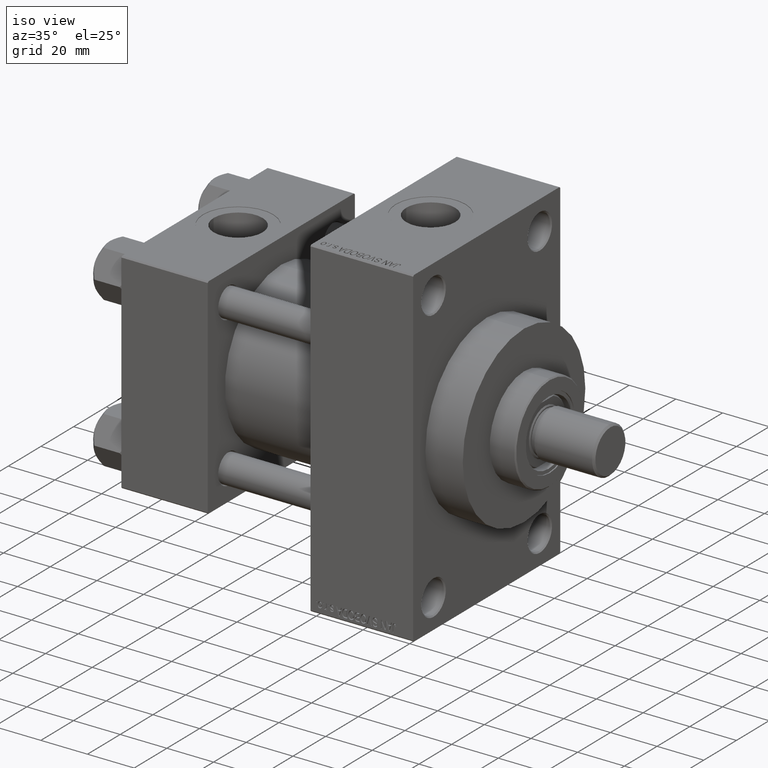
[diagram: clean part render]
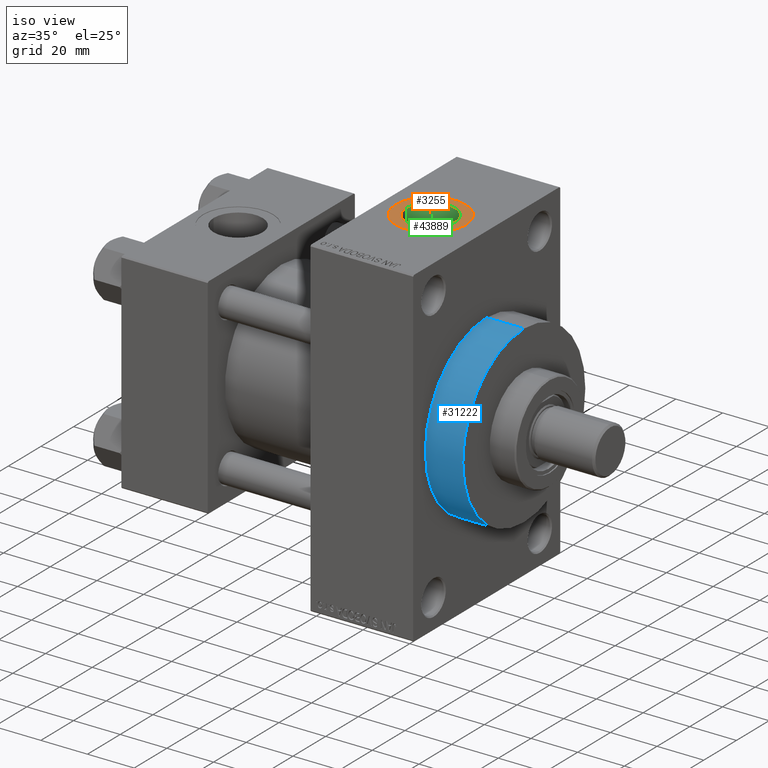
[diagram: same view with three faces highlighted in distinct colors, each labeled with its STEP entity id]
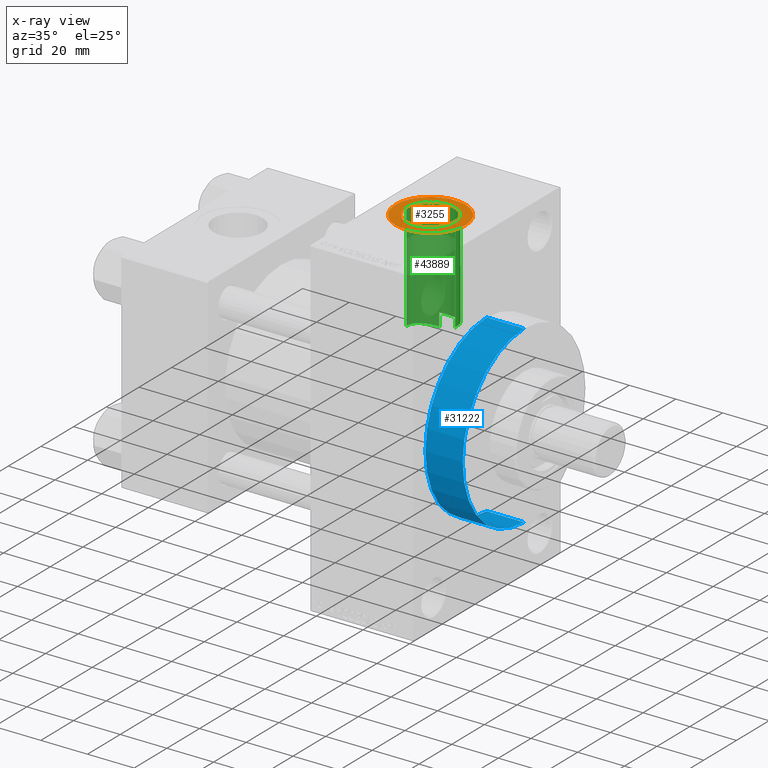
[diagram: x-ray of the same camera — body ghosted, the three highlighted faces saturated]
A machine part, iso view with three faces highlighted in distinct colors.
The next image is the same camera in x-ray (body ghosted, the three faces saturated) — at least one of them is partly hidden behind the body in this view.
Their STEP definitions:

[orange] entity #3255 — the highlighted planar face has unit normal (0, 0, 1).
#99 = CARTESIAN_POINT ( 'NONE',  ( 100.9999999999999858, -1.094803260394251466E-14, 70.79999999999996874 ) ) ;
#277 = ORIENTED_EDGE ( 'NONE', *, *, #45953, .T. ) ;
#2875 = CARTESIAN_POINT ( 'NONE',  ( 100.9999999999999858, -1.094803260394251466E-14, 70.79999999999996874 ) ) ;
#3099 = CIRCLE ( 'NONE', #11570, 10.48000000000000398 ) ;
#3255 = ADVANCED_FACE ( 'NONE', ( #17452, #36227 ), #32130, .T. ) ;
#3485 = CARTESIAN_POINT ( 'NONE',  ( 100.9999999999999858, -1.094803260394251466E-14, 70.79999999999996874 ) ) ;
#3844 = AXIS2_PLACEMENT_3D ( 'NONE', #20578, #46134, #35266 ) ;
#5601 = DIRECTION ( 'NONE',  ( 1.000000000000000000, 0.000000000000000000, 0.000000000000000000 ) ) ;
#6733 = DIRECTION ( 'NONE',  ( 0.000000000000000000, 0.000000000000000000, 1.000000000000000000 ) ) ;
#7048 = CARTESIAN_POINT ( 'NONE',  ( 90.51999999999999602, -1.094803260394251466E-14, 70.79999999999996874 ) ) ;
#9452 = DIRECTION ( 'NONE',  ( 0.000000000000000000, 0.000000000000000000, 1.000000000000000000 ) ) ;
#9817 = CARTESIAN_POINT ( 'NONE',  ( 111.4799999999999898, -9.664602758436087591E-15, 70.79999999999996874 ) ) ;
#10275 = CIRCLE ( 'NONE', #18767, 15.00000000000000000 ) ;
#10951 = DIRECTION ( 'NONE',  ( 1.000000000000000000, 0.000000000000000000, -0.000000000000000000 ) ) ;
#11570 = AXIS2_PLACEMENT_3D ( 'NONE', #3485, #18169, #24938 ) ;
#14214 = ORIENTED_EDGE ( 'NONE', *, *, #16314, .T. ) ;
#16314 = EDGE_CURVE ( 'NONE', #37870, #46490, #10275, .T. ) ;
#17452 = FACE_BOUND ( 'NONE', #19453, .T. ) ;
#18169 = DIRECTION ( 'NONE',  ( -0.000000000000000000, -0.000000000000000000, -1.000000000000000000 ) ) ;
#18767 = AXIS2_PLACEMENT_3D ( 'NONE', #2875, #6733, #32723 ) ;
#19453 = EDGE_LOOP ( 'NONE', ( #277, #26155 ) ) ;
#20578 = CARTESIAN_POINT ( 'NONE',  ( 100.9999999999999858, -1.094803260394251466E-14, 70.79999999999996874 ) ) ;
#23370 = CIRCLE ( 'NONE', #33348, 15.00000000000000000 ) ;
#23977 = EDGE_CURVE ( 'NONE', #46490, #37870, #23370, .T. ) ;
#24938 = DIRECTION ( 'NONE',  ( 1.000000000000000000, 0.000000000000000000, 0.000000000000000000 ) ) ;
#25599 = EDGE_LOOP ( 'NONE', ( #45716, #14214 ) ) ;
#26155 = ORIENTED_EDGE ( 'NONE', *, *, #45025, .T. ) ;
#27644 = AXIS2_PLACEMENT_3D ( 'NONE', #99, #39859, #10951 ) ;
#30599 = CARTESIAN_POINT ( 'NONE',  ( 115.9999999999999858, -1.094803260394251466E-14, 70.79999999999996874 ) ) ;
#32130 = PLANE ( 'NONE',  #27644 ) ;
#32723 = DIRECTION ( 'NONE',  ( 1.000000000000000000, 0.000000000000000000, 0.000000000000000000 ) ) ;
#33348 = AXIS2_PLACEMENT_3D ( 'NONE', #34736, #9452, #5601 ) ;
#34736 = CARTESIAN_POINT ( 'NONE',  ( 100.9999999999999858, -1.094803260394251466E-14, 70.79999999999996874 ) ) ;
#35266 = DIRECTION ( 'NONE',  ( 1.000000000000000000, 0.000000000000000000, 0.000000000000000000 ) ) ;
#36227 = FACE_OUTER_BOUND ( 'NONE', #25599, .T. ) ;
#36354 = CARTESIAN_POINT ( 'NONE',  ( 86.00000000000000000, -9.111062405221485858E-15, 70.79999999999996874 ) ) ;
#37162 = VERTEX_POINT ( 'NONE', #9817 ) ;
#37870 = VERTEX_POINT ( 'NONE', #36354 ) ;
#39859 = DIRECTION ( 'NONE',  ( 0.000000000000000000, 0.000000000000000000, 1.000000000000000000 ) ) ;
#40260 = VERTEX_POINT ( 'NONE', #7048 ) ;
#41627 = CIRCLE ( 'NONE', #3844, 10.48000000000000398 ) ;
#45025 = EDGE_CURVE ( 'NONE', #37162, #40260, #41627, .T. ) ;
#45716 = ORIENTED_EDGE ( 'NONE', *, *, #23977, .T. ) ;
#45953 = EDGE_CURVE ( 'NONE', #40260, #37162, #3099, .T. ) ;
#46134 = DIRECTION ( 'NONE',  ( -0.000000000000000000, -0.000000000000000000, -1.000000000000000000 ) ) ;
#46490 = VERTEX_POINT ( 'NONE', #30599 ) ;

[blue] entity #31222 — the highlighted cylindrical surface (partial cylindrical patch) has radius 37.5 mm, axis along (-1, -0, -0).
#1694 = VECTOR ( 'NONE', #36445, 1000.000000000000000 ) ;
#2838 = AXIS2_PLACEMENT_3D ( 'NONE', #24847, #24607, #13282 ) ;
#3215 = LINE ( 'NONE', #29228, #1694 ) ;
#3776 = CARTESIAN_POINT ( 'NONE',  ( 124.9999999999999858, 4.592425496802575156E-15, -37.50000000000000711 ) ) ;
#4719 = DIRECTION ( 'NONE',  ( 0.000000000000000000, 0.000000000000000000, -1.000000000000000000 ) ) ;
#5817 = VERTEX_POINT ( 'NONE', #3776 ) ;
#6163 = CIRCLE ( 'NONE', #20764, 37.50000000000000711 ) ;
#9908 = CYLINDRICAL_SURFACE ( 'NONE', #2838, 37.50000000000000711 ) ;
#10054 = CARTESIAN_POINT ( 'NONE',  ( 141.0000000000000000, 4.592425496802575156E-15, -37.50000000000000711 ) ) ;
#13282 = DIRECTION ( 'NONE',  ( 0.000000000000000000, 0.000000000000000000, 1.000000000000000000 ) ) ;
#15311 = ORIENTED_EDGE ( 'NONE', *, *, #23003, .F. ) ;
#15836 = VERTEX_POINT ( 'NONE', #39318 ) ;
#17547 = DIRECTION ( 'NONE',  ( 1.000000000000000000, 0.000000000000000000, 0.000000000000000000 ) ) ;
#19430 = EDGE_CURVE ( 'NONE', #31931, #15836, #21912, .T. ) ;
#20764 = AXIS2_PLACEMENT_3D ( 'NONE', #30482, #26185, #4719 ) ;
#21912 = LINE ( 'NONE', #44080, #41899 ) ;
#23003 = EDGE_CURVE ( 'NONE', #37160, #5817, #3215, .T. ) ;
#24607 = DIRECTION ( 'NONE',  ( -1.000000000000000000, -0.000000000000000000, -0.000000000000000000 ) ) ;
#24847 = CARTESIAN_POINT ( 'NONE',  ( 141.0000000000000000, 0.000000000000000000, 0.000000000000000000 ) ) ;
#25836 = EDGE_CURVE ( 'NONE', #15836, #5817, #30341, .T. ) ;
#26185 = DIRECTION ( 'NONE',  ( 1.000000000000000000, 0.000000000000000000, 0.000000000000000000 ) ) ;
#28933 = FACE_OUTER_BOUND ( 'NONE', #43178, .T. ) ;
#29228 = CARTESIAN_POINT ( 'NONE',  ( 141.0000000000000000, 4.592425496802575156E-15, -37.50000000000000711 ) ) ;
#29830 = ORIENTED_EDGE ( 'NONE', *, *, #45740, .F. ) ;
#30341 = CIRCLE ( 'NONE', #47289, 37.50000000000000711 ) ;
#30482 = CARTESIAN_POINT ( 'NONE',  ( 141.0000000000000000, 0.000000000000000000, 0.000000000000000000 ) ) ;
#31222 = ADVANCED_FACE ( 'NONE', ( #28933 ), #9908, .T. ) ;
#31931 = VERTEX_POINT ( 'NONE', #36919 ) ;
#32700 = CARTESIAN_POINT ( 'NONE',  ( 124.9999999999999858, 0.000000000000000000, 0.000000000000000000 ) ) ;
#35441 = ORIENTED_EDGE ( 'NONE', *, *, #25836, .T. ) ;
#36445 = DIRECTION ( 'NONE',  ( -1.000000000000000000, -0.000000000000000000, -0.000000000000000000 ) ) ;
#36598 = DIRECTION ( 'NONE',  ( -1.000000000000000000, -0.000000000000000000, -0.000000000000000000 ) ) ;
#36919 = CARTESIAN_POINT ( 'NONE',  ( 141.0000000000000000, 0.000000000000000000, 37.50000000000000711 ) ) ;
#37160 = VERTEX_POINT ( 'NONE', #10054 ) ;
#39318 = CARTESIAN_POINT ( 'NONE',  ( 124.9999999999999858, 0.000000000000000000, 37.50000000000000711 ) ) ;
#39955 = ORIENTED_EDGE ( 'NONE', *, *, #19430, .T. ) ;
#41899 = VECTOR ( 'NONE', #36598, 1000.000000000000000 ) ;
#43178 = EDGE_LOOP ( 'NONE', ( #15311, #29830, #39955, #35441 ) ) ;
#43571 = DIRECTION ( 'NONE',  ( 0.000000000000000000, 0.000000000000000000, -1.000000000000000000 ) ) ;
#44080 = CARTESIAN_POINT ( 'NONE',  ( 141.0000000000000000, 0.000000000000000000, 37.50000000000000711 ) ) ;
#45740 = EDGE_CURVE ( 'NONE', #31931, #37160, #6163, .T. ) ;
#47289 = AXIS2_PLACEMENT_3D ( 'NONE', #32700, #17547, #43571 ) ;

[green] entity #43889 — the highlighted cylindrical surface (edge-blend (fillet) strip) has radius 10.48 mm, axis along (0, 0, -1).
#125 = EDGE_LOOP ( 'NONE', ( #47015, #21518, #17429, #33548, #30003, #20276 ) ) ;
#220 = LINE ( 'NONE', #44539, #18561 ) ;
#408 = EDGE_CURVE ( 'NONE', #37162, #34399, #5009, .T. ) ;
#574 = CARTESIAN_POINT ( 'NONE',  ( 109.2306735501210824, 6.500194899328793241, 29.28905352826703279 ) ) ;
#776 = CARTESIAN_POINT ( 'NONE',  ( 96.71450222533859176, 9.579591377203486857, 23.09339075464096425 ) ) ;
#1013 = CARTESIAN_POINT ( 'NONE',  ( 90.87147927091555744, 2.746840284963952605, 24.85421337676989140 ) ) ;
#1046 = CARTESIAN_POINT ( 'NONE',  ( 111.3830360161806254, 1.648097371455667037, 29.96570276014226764 ) ) ;
#1481 = CARTESIAN_POINT ( 'NONE',  ( 93.98469892201671883, 7.804704455460313994, 23.75393200882464484 ) ) ;
#1684 = EDGE_CURVE ( 'NONE', #44163, #34399, #5567, .T. ) ;
#2943 = VECTOR ( 'NONE', #23795, 1000.000000000000000 ) ;
#3099 = CIRCLE ( 'NONE', #11570, 10.48000000000000398 ) ;
#3485 = CARTESIAN_POINT ( 'NONE',  ( 100.9999999999999858, -1.094803260394251466E-14, 70.79999999999996874 ) ) ;
#4203 = CARTESIAN_POINT ( 'NONE',  ( 107.8380018292597384, 7.984464829307558631, 28.92238598225678103 ) ) ;
#4400 = CARTESIAN_POINT ( 'NONE',  ( 90.60817128935903497, 1.384942614456406762, 24.96313457725881335 ) ) ;
#4628 = VECTOR ( 'NONE', #45680, 1000.000000000000000 ) ;
#4630 = CARTESIAN_POINT ( 'NONE',  ( 93.40550942694525816, 7.226927296489264130, 23.93349527817645850 ) ) ;
#4667 = CARTESIAN_POINT ( 'NONE',  ( 110.9683417730961139, 3.260593319422034231, 29.82480881445975385 ) ) ;
#4823 = EDGE_CURVE ( 'NONE', #40260, #44309, #44735, .T. ) ;
#5009 = LINE ( 'NONE', #9102, #2943 ) ;
#5567 = B_SPLINE_CURVE_WITH_KNOTS ( 'NONE', 3,
 ( #33345, #26368, #33103, #33578, #40591, #19113, #7577, #14564, #22977, #41053, #8053, #40825, #22510, #4203, #18885, #574, #15267, #22735, #15508, #30195, #11899, #4667, #26835, #1046, #12132, #30665 ),
 .UNSPECIFIED., .F., .F.,
 ( 4, 2, 2, 2, 2, 2, 2, 2, 2, 2, 2, 2, 4 ),
 ( 0.000000000000000000, 0.002478973229448049737, 0.003718459844172075038, 0.004957946458896099473, 0.006197433073620124341, 0.007436919688344150077, 0.009915892917792162517, 0.01239486614724017409, 0.01363435276196417988, 0.01487383937668818393, 0.01611332599141218971, 0.01735281260613619550, 0.01983178583558420013 ),
 .UNSPECIFIED. ) ;
#7048 = CARTESIAN_POINT ( 'NONE',  ( 90.51999999999999602, -1.094803260394251466E-14, 70.79999999999996874 ) ) ;
#7169 = EDGE_CURVE ( 'NONE', #44163, #11846, #220, .T. ) ;
#7577 = CARTESIAN_POINT ( 'NONE',  ( 102.2444743077374909, 10.41402026144618453, 28.13455134504983235 ) ) ;
#8016 = CARTESIAN_POINT ( 'NONE',  ( 90.51999999999999602, 3.061579607129328475E-15, 25.00000000000000000 ) ) ;
#8053 = CARTESIAN_POINT ( 'NONE',  ( 104.6536175153769648, 9.831116643405016120, 28.34390843602812993 ) ) ;
#8728 = CARTESIAN_POINT ( 'NONE',  ( 91.43648372410437730, 4.294796546401065562, 24.62967549968344372 ) ) ;
#8827 = CARTESIAN_POINT ( 'NONE',  ( 90.51999999999999602, -1.094803260394251466E-14, 93.79999999999996874 ) ) ;
#9102 = CARTESIAN_POINT ( 'NONE',  ( 111.4799999999999898, -9.664602758436087591E-15, 93.79999999999996874 ) ) ;
#9817 = CARTESIAN_POINT ( 'NONE',  ( 111.4799999999999898, -9.664602758436087591E-15, 70.79999999999996874 ) ) ;
#10611 = CARTESIAN_POINT ( 'NONE',  ( 111.4799999999999898, 3.673940397618238639E-15, 30.00000000000000000 ) ) ;
#11398 = CARTESIAN_POINT ( 'NONE',  ( 97.73999999999999488, 9.960060240781668739, 22.93026820601975402 ) ) ;
#11570 = AXIS2_PLACEMENT_3D ( 'NONE', #3485, #18169, #24938 ) ;
#11846 = VERTEX_POINT ( 'NONE', #35875 ) ;
#11899 = CARTESIAN_POINT ( 'NONE',  ( 110.6823871826148462, 4.031213830330552916, 29.73045584359391569 ) ) ;
#12132 = CARTESIAN_POINT ( 'NONE',  ( 111.4799999999999613, 0.8289108953755146558, 29.99999999999999289 ) ) ;
#12340 = CARTESIAN_POINT ( 'NONE',  ( 92.86512538389703764, 6.612730445768632670, 24.11053477674086309 ) ) ;
#14138 = EDGE_CURVE ( 'NONE', #44309, #11846, #40162, .T. ) ;
#14564 = CARTESIAN_POINT ( 'NONE',  ( 103.0591099703892581, 10.28399729863218504, 28.18233838691855908 ) ) ;
#15267 = CARTESIAN_POINT ( 'NONE',  ( 109.4793501314061359, 6.172613663302652931, 29.36019312204047083 ) ) ;
#15471 = CARTESIAN_POINT ( 'NONE',  ( 95.27076495388506316, 8.791964167062968016, 23.40546361773868256 ) ) ;
#15508 = CARTESIAN_POINT ( 'NONE',  ( 110.1456671303457142, 5.133639323080407380, 29.55979794353438095 ) ) ;
#17429 = ORIENTED_EDGE ( 'NONE', *, *, #4823, .T. ) ;
#18169 = DIRECTION ( 'NONE',  ( -0.000000000000000000, -0.000000000000000000, -1.000000000000000000 ) ) ;
#18561 = VECTOR ( 'NONE', #26243, 1000.000000000000000 ) ;
#18885 = CARTESIAN_POINT ( 'NONE',  ( 108.4361280113390222, 7.429595108124755320, 29.07242469717888511 ) ) ;
#19080 = CARTESIAN_POINT ( 'NONE',  ( 94.39636035624793919, 8.155655190358217510, 23.63471280748279924 ) ) ;
#19113 = CARTESIAN_POINT ( 'NONE',  ( 101.8327597629122323, 10.45516439159307787, 28.11920784241487326 ) ) ;
#19797 = CARTESIAN_POINT ( 'NONE',  ( 92.21689529189161760, 5.742964677340205881, 24.33562597405337868 ) ) ;
#20276 = ORIENTED_EDGE ( 'NONE', *, *, #1684, .T. ) ;
#21518 = ORIENTED_EDGE ( 'NONE', *, *, #45953, .F. ) ;
#22510 = CARTESIAN_POINT ( 'NONE',  ( 106.5055286267077577, 8.955395143035868699, 28.63663715154386580 ) ) ;
#22700 = CARTESIAN_POINT ( 'NONE',  ( 90.74071248067697582, 2.210995156578863696, 24.90815361058044175 ) ) ;
#22735 = CARTESIAN_POINT ( 'NONE',  ( 109.9382592368621090, 5.487081182378869215, 29.49600040171356596 ) ) ;
#22943 = CARTESIAN_POINT ( 'NONE',  ( 90.52000000000002444, 0.2761730040892639293, 25.00000000000000355 ) ) ;
#22977 = CARTESIAN_POINT ( 'NONE',  ( 103.4620306645708325, 10.19511646566077268, 28.21478357702915218 ) ) ;
#23186 = CARTESIAN_POINT ( 'NONE',  ( 91.22427909904563137, 3.787004330726774004, 24.71284667523638134 ) ) ;
#23418 = CARTESIAN_POINT ( 'NONE',  ( 91.55342320132685074, 4.546234407114481790, 24.58442359052068937 ) ) ;
#23795 = DIRECTION ( 'NONE',  ( 0.000000000000000000, 0.000000000000000000, -1.000000000000000000 ) ) ;
#24938 = DIRECTION ( 'NONE',  ( 1.000000000000000000, 0.000000000000000000, 0.000000000000000000 ) ) ;
#25481 = AXIS2_PLACEMENT_3D ( 'NONE', #29948, #37887, #38127 ) ;
#26097 = CARTESIAN_POINT ( 'NONE',  ( 91.93065594560268039, 5.280155339913229717, 24.44112276137722262 ) ) ;
#26243 = DIRECTION ( 'NONE',  ( 0.000000000000000000, 0.000000000000000000, -1.000000000000000000 ) ) ;
#26368 = CARTESIAN_POINT ( 'NONE',  ( 98.53170141085058731, 10.21918985817144865, 28.20715556589740203 ) ) ;
#26835 = CARTESIAN_POINT ( 'NONE',  ( 111.0901672462784688, 2.862209008249562814, 29.86591119163860597 ) ) ;
#29948 = CARTESIAN_POINT ( 'NONE',  ( 100.9999999999999858, -1.094803260394251466E-14, 93.79999999999996874 ) ) ;
#30003 = ORIENTED_EDGE ( 'NONE', *, *, #7169, .F. ) ;
#30195 = CARTESIAN_POINT ( 'NONE',  ( 110.5177326829065692, 4.405705906582507936, 29.67702246902073426 ) ) ;
#30665 = CARTESIAN_POINT ( 'NONE',  ( 111.4799999999999898, 3.673940397618238639E-15, 30.00000000000000000 ) ) ;
#30874 = CARTESIAN_POINT ( 'NONE',  ( 97.22046957596535321, 9.790014162604526504, 23.00412993180229648 ) ) ;
#32784 = CARTESIAN_POINT ( 'NONE',  ( 97.73999999999999488, 9.960060240781668739, 28.29836037653065617 ) ) ;
#33103 = CARTESIAN_POINT ( 'NONE',  ( 99.34059067740447801, 10.38092379675460109, 28.14678245432906678 ) ) ;
#33345 = CARTESIAN_POINT ( 'NONE',  ( 97.73999999999999488, 9.960060240781668739, 28.29836037653065617 ) ) ;
#33548 = ORIENTED_EDGE ( 'NONE', *, *, #14138, .T. ) ;
#33578 = CARTESIAN_POINT ( 'NONE',  ( 100.5797722390586557, 10.47976684723566443, 28.11006442857998877 ) ) ;
#33772 = CARTESIAN_POINT ( 'NONE',  ( 95.73349084287403343, 9.077331294423915509, 23.29539276492243260 ) ) ;
#34399 = VERTEX_POINT ( 'NONE', #10611 ) ;
#34478 = CARTESIAN_POINT ( 'NONE',  ( 92.69672446213152739, 6.399965487557562227, 24.16798554837829016 ) ) ;
#35875 = CARTESIAN_POINT ( 'NONE',  ( 97.73999999999999488, 9.960060240781668739, 22.93026820601975402 ) ) ;
#37122 = CARTESIAN_POINT ( 'NONE',  ( 90.51999999999999602, 3.061579607129328475E-15, 25.00000000000000000 ) ) ;
#37152 = CARTESIAN_POINT ( 'NONE',  ( 90.53089917534431663, 0.5526879277622459563, 24.99542504668380616 ) ) ;
#37162 = VERTEX_POINT ( 'NONE', #9817 ) ;
#37413 = CYLINDRICAL_SURFACE ( 'NONE', #25481, 10.48000000000000398 ) ;
#37626 = CARTESIAN_POINT ( 'NONE',  ( 93.21911504617180810, 7.025825097695077126, 23.99341311413245847 ) ) ;
#37887 = DIRECTION ( 'NONE',  ( 0.000000000000000000, 0.000000000000000000, -1.000000000000000000 ) ) ;
#38127 = DIRECTION ( 'NONE',  ( -1.000000000000000000, 0.000000000000000000, 0.000000000000000000 ) ) ;
#40162 = B_SPLINE_CURVE_WITH_KNOTS ( 'NONE', 3,
 ( #8016, #22943, #37152, #41731, #4400, #22700, #1013, #45342, #23186, #8728, #23418, #26097, #19797, #34478, #12340, #37626, #4630, #1481, #19080, #15471, #33772, #776, #30874, #11398 ),
 .UNSPECIFIED., .F., .F.,
 ( 4, 2, 2, 2, 2, 2, 2, 2, 2, 2, 2, 4 ),
 ( 0.03315293716445246591, 0.03398143856659528034, 0.03480993996873808782, 0.03646694277302370973, 0.03729544417516652416, 0.03812394557730933858, 0.03978094838159496049, 0.04060944978373776798, 0.04143795118588057547, 0.04309495399016619738, 0.04475195679445181235, 0.04640895959873742732 ),
 .UNSPECIFIED. ) ;
#40260 = VERTEX_POINT ( 'NONE', #7048 ) ;
#40580 = FACE_OUTER_BOUND ( 'NONE', #125, .T. ) ;
#40591 = CARTESIAN_POINT ( 'NONE',  ( 101.0002282757462666, 10.48827684731154974, 28.10687390860658752 ) ) ;
#40825 = CARTESIAN_POINT ( 'NONE',  ( 105.7931686517055283, 9.355930520045840026, 28.50576369173083791 ) ) ;
#41053 = CARTESIAN_POINT ( 'NONE',  ( 104.2590511626587073, 9.968980903826002660, 28.29547369785729671 ) ) ;
#41731 = CARTESIAN_POINT ( 'NONE',  ( 90.57486750893737337, 1.106412475567414289, 24.97704123077413740 ) ) ;
#43889 = ADVANCED_FACE ( 'NONE', ( #40580 ), #37413, .F. ) ;
#44163 = VERTEX_POINT ( 'NONE', #32784 ) ;
#44309 = VERTEX_POINT ( 'NONE', #37122 ) ;
#44539 = CARTESIAN_POINT ( 'NONE',  ( 97.73999999999999488, 9.960060240781668739, 93.79999999999996874 ) ) ;
#44735 = LINE ( 'NONE', #8827, #4628 ) ;
#45342 = CARTESIAN_POINT ( 'NONE',  ( 91.12843841376383125, 3.529601645624517836, 24.75098332906153331 ) ) ;
#45680 = DIRECTION ( 'NONE',  ( 0.000000000000000000, 0.000000000000000000, -1.000000000000000000 ) ) ;
#45953 = EDGE_CURVE ( 'NONE', #40260, #37162, #3099, .T. ) ;
#47015 = ORIENTED_EDGE ( 'NONE', *, *, #408, .F. ) ;